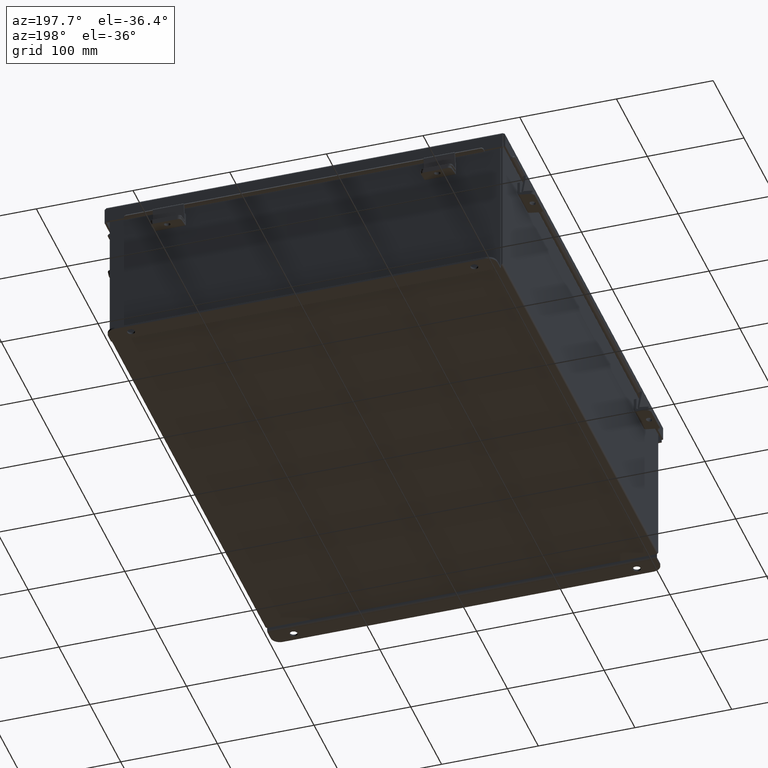
[diagram: clean part render]
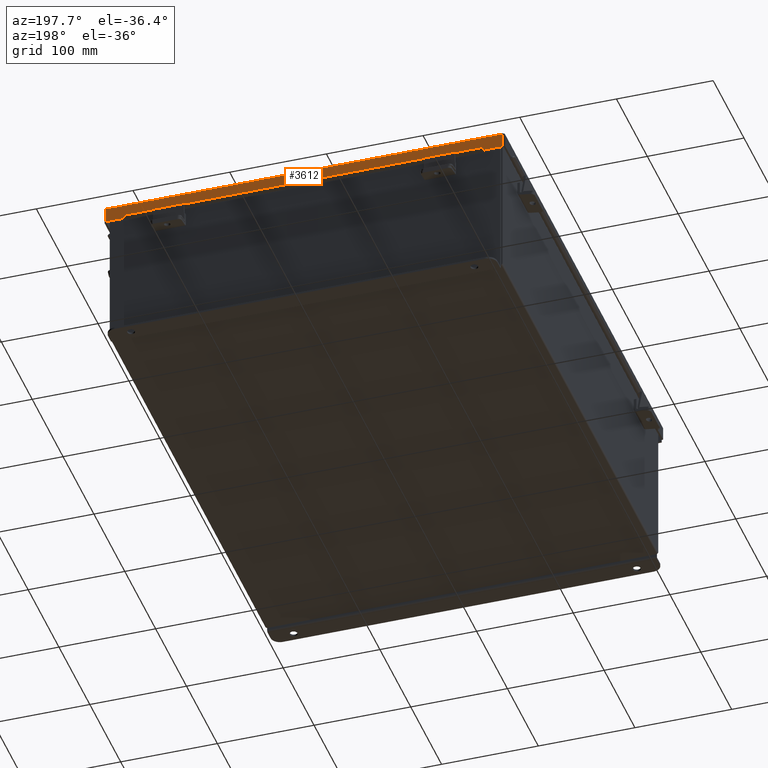
[diagram: same view with one face highlighted and labeled with its STEP entity id]
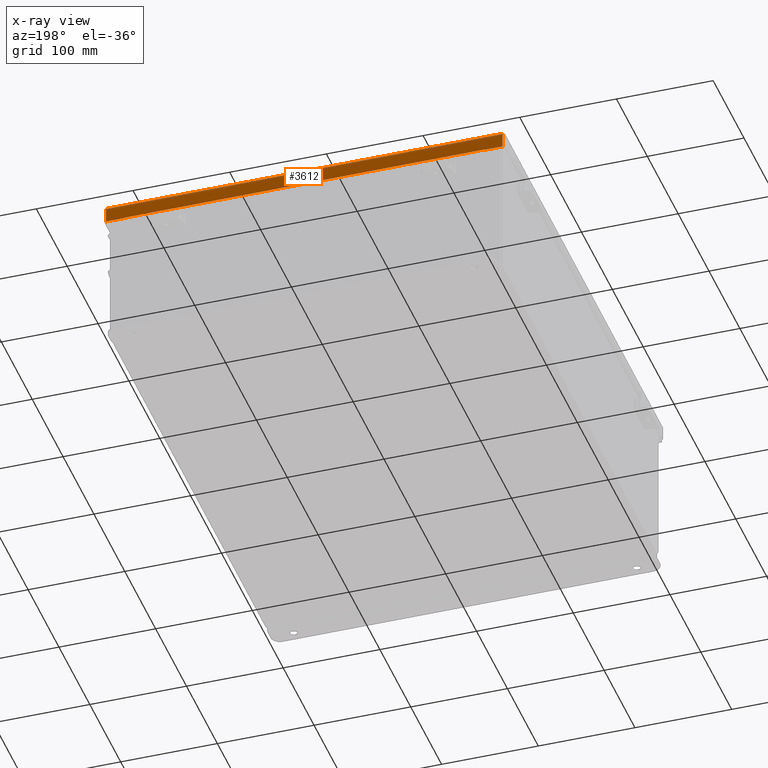
[diagram: x-ray of the same camera — body ghosted, the highlighted face saturated]
A machine part, auxiliary view. The second image highlights one B-rep face of the part: STEP entity #3612.
The next image is the same camera in x-ray: the body ghosted, the highlighted face saturated — about 0% of this face is hidden behind the body in this view.
In plain terms, the highlighted planar face has unit normal (-0, -1, -0).
Its self-contained STEP definition (entity closure, byte-faithful):
#6 = ORIENTED_EDGE ( 'NONE', *, *, #5373, .F. ) ;
#134 = DIRECTION ( 'NONE',  ( -3.372195227344556400E-030, -1.000000000000000000, 3.569293475308532400E-015 ) ) ;
#291 = DIRECTION ( 'NONE',  ( 0.0000000000000000000, -1.846427556282924300E-029, -1.000000000000000000 ) ) ;
#338 = CARTESIAN_POINT ( 'NONE',  ( 8.074478932188169400, 10.15624999999999800, 0.0000000000000000000 ) ) ;
#389 = DIRECTION ( 'NONE',  ( -1.000000000000000000, -3.191323508412551400E-030, -0.0000000000000000000 ) ) ;
#425 = EDGE_CURVE ( 'NONE', #6832, #8228, #3079, .T. ) ;
#848 = EDGE_CURVE ( 'NONE', #5842, #1581, #8973, .T. ) ;
#975 = LINE ( 'NONE', #8105, #8795 ) ;
#1185 = EDGE_CURVE ( 'NONE', #6996, #8228, #6914, .T. ) ;
#1581 = VERTEX_POINT ( 'NONE', #8737 ) ;
#1613 = ORIENTED_EDGE ( 'NONE', *, *, #425, .T. ) ;
#1868 = EDGE_CURVE ( 'NONE', #5346, #6832, #975, .T. ) ;
#1891 = CARTESIAN_POINT ( 'NONE',  ( 7.324478932188148100, 10.15625000000000400, 0.5967115427318782100 ) ) ;
#1912 = VECTOR ( 'NONE', #7562, 39.37007874015748100 ) ;
#1921 = CARTESIAN_POINT ( 'NONE',  ( 8.156250000000033800, 10.15624999999999800, 0.01300000000000010700 ) ) ;
#1984 = LINE ( 'NONE', #1921, #5674 ) ;
#2412 = PLANE ( 'NONE',  #4828 ) ;
#2664 = DIRECTION ( 'NONE',  ( 1.000000000000000000, 3.191323508412550700E-030, -0.0000000000000000000 ) ) ;
#3079 = LINE ( 'NONE', #3379, #9779 ) ;
#3129 = VECTOR ( 'NONE', #389, 39.37007874015748100 ) ;
#3379 = CARTESIAN_POINT ( 'NONE',  ( 5.335640612625514100E-018, 10.15625000000000200, 0.6122999999999994000 ) ) ;
#3422 = CARTESIAN_POINT ( 'NONE',  ( -7.324478932188140900, 10.15625000000000200, 0.5967115427318782100 ) ) ;
#3612 = ADVANCED_FACE ( 'NONE', ( #8413 ), #2412, .F. ) ;
#3760 = CARTESIAN_POINT ( 'NONE',  ( 5.335640612625514100E-018, 10.15625000000000200, 0.6122999999999994000 ) ) ;
#3811 = DIRECTION ( 'NONE',  ( -0.0000000000000000000, 3.569293475308532400E-015, 1.000000000000000000 ) ) ;
#4092 = DIRECTION ( 'NONE',  ( 0.0000000000000000000, 3.569293475308532400E-015, 1.000000000000000000 ) ) ;
#4169 = CARTESIAN_POINT ( 'NONE',  ( -7.324478932188148100, 10.15625000000000200, 0.6122999999999994000 ) ) ;
#4828 = AXIS2_PLACEMENT_3D ( 'NONE', #5231, #134, #5324 ) ;
#5035 = CARTESIAN_POINT ( 'NONE',  ( -8.074478932188169400, 10.15624999999999800, 0.01300000000000010700 ) ) ;
#5231 = CARTESIAN_POINT ( 'NONE',  ( 0.0000000000000000000, 10.15624999999999800, -3.715313271383398100E-014 ) ) ;
#5260 = CARTESIAN_POINT ( 'NONE',  ( -7.324478932188140900, 10.15625000000000400, 0.5967115427318782100 ) ) ;
#5289 = EDGE_LOOP ( 'NONE', ( #6, #7247, #5405, #8333, #8961, #1613, #9491, #9652 ) ) ;
#5324 = DIRECTION ( 'NONE',  ( 0.0000000000000000000, -3.569293475308532400E-015, -1.000000000000000000 ) ) ;
#5346 = VERTEX_POINT ( 'NONE', #5035 ) ;
#5373 = EDGE_CURVE ( 'NONE', #8208, #5621, #6462, .T. ) ;
#5405 = ORIENTED_EDGE ( 'NONE', *, *, #848, .F. ) ;
#5409 = DIRECTION ( 'NONE',  ( 1.000000000000000000, 3.215430816478818200E-030, 4.186740220174584600E-018 ) ) ;
#5621 = VERTEX_POINT ( 'NONE', #6298 ) ;
#5674 = VECTOR ( 'NONE', #2664, 39.37007874015748100 ) ;
#5842 = VERTEX_POINT ( 'NONE', #9145 ) ;
#6051 = VECTOR ( 'NONE', #3811, 39.37007874015748100 ) ;
#6192 = EDGE_CURVE ( 'NONE', #5621, #6996, #8914, .T. ) ;
#6298 = CARTESIAN_POINT ( 'NONE',  ( 7.324478932188149800, 10.15625000000000200, 0.5967115427318782100 ) ) ;
#6462 = LINE ( 'NONE', #9706, #9206 ) ;
#6832 = VERTEX_POINT ( 'NONE', #7218 ) ;
#6914 = LINE ( 'NONE', #5260, #1912 ) ;
#6996 = VERTEX_POINT ( 'NONE', #3422 ) ;
#7218 = CARTESIAN_POINT ( 'NONE',  ( -8.074478932188169400, 10.15625000000000200, 0.6122999999999994000 ) ) ;
#7237 = EDGE_CURVE ( 'NONE', #8208, #1581, #8791, .T. ) ;
#7247 = ORIENTED_EDGE ( 'NONE', *, *, #7237, .T. ) ;
#7515 = DIRECTION ( 'NONE',  ( 1.000000000000000000, 3.215430816478818200E-030, 4.186740220174584600E-018 ) ) ;
#7562 = DIRECTION ( 'NONE',  ( -3.504962610060362700E-013, 1.873544649899896900E-029, 1.000000000000000000 ) ) ;
#8020 = VECTOR ( 'NONE', #5409, 39.37007874015748100 ) ;
#8105 = CARTESIAN_POINT ( 'NONE',  ( -8.074478932188169400, 10.15624999999999800, -3.715313271383398100E-014 ) ) ;
#8208 = VERTEX_POINT ( 'NONE', #9506 ) ;
#8228 = VERTEX_POINT ( 'NONE', #4169 ) ;
#8324 = EDGE_CURVE ( 'NONE', #5346, #5842, #1984, .T. ) ;
#8333 = ORIENTED_EDGE ( 'NONE', *, *, #8324, .F. ) ;
#8413 = FACE_OUTER_BOUND ( 'NONE', #5289, .T. ) ;
#8737 = CARTESIAN_POINT ( 'NONE',  ( 8.074478932188169400, 10.15625000000000200, 0.6122999999999994000 ) ) ;
#8791 = LINE ( 'NONE', #3760, #8020 ) ;
#8795 = VECTOR ( 'NONE', #4092, 39.37007874015748100 ) ;
#8914 = LINE ( 'NONE', #1891, #3129 ) ;
#8961 = ORIENTED_EDGE ( 'NONE', *, *, #1868, .T. ) ;
#8973 = LINE ( 'NONE', #338, #6051 ) ;
#9145 = CARTESIAN_POINT ( 'NONE',  ( 8.074478932188169400, 10.15624999999999800, 0.01300000000000010700 ) ) ;
#9206 = VECTOR ( 'NONE', #291, 39.37007874015748100 ) ;
#9491 = ORIENTED_EDGE ( 'NONE', *, *, #1185, .F. ) ;
#9506 = CARTESIAN_POINT ( 'NONE',  ( 7.324478932188149800, 10.15625000000000200, 0.6122999999999994000 ) ) ;
#9652 = ORIENTED_EDGE ( 'NONE', *, *, #6192, .F. ) ;
#9706 = CARTESIAN_POINT ( 'NONE',  ( 7.324478932188149800, 10.15625000000000400, 0.6122999999999982900 ) ) ;
#9779 = VECTOR ( 'NONE', #7515, 39.37007874015748100 ) ;